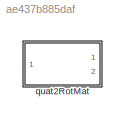
MODEL slx_ae437b885daf
KIND library
CONFIG AbsTol = auto
CONFIG EnableMultiTasking = off
CONFIG FixedStep = auto
CONFIG MaxStep = auto
CONFIG MinStep = auto
CONFIG RelTol = 1e-3
CONFIG SampleTimeConstraint = Unconstrained
CONFIG SolverName = VariableStepAuto
CONFIG StartTime = 0.0
CONFIG StopTime = 10.0
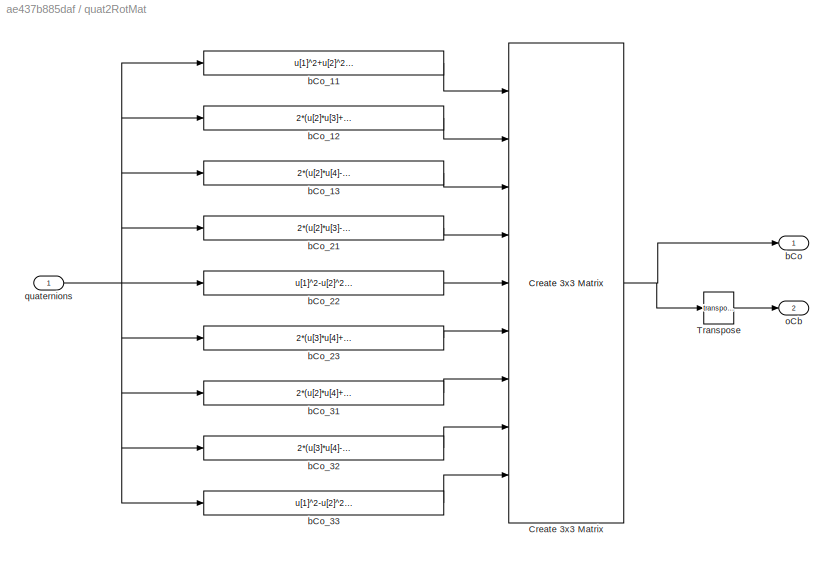
BLOCK [SubSystem] quat2RotMat
  Ports = [1, 2]
  RequestExecContextInheritance = off
BLOCK [Reference] quat2RotMat/Create 3x3 Matrix  REF=sharedutil/Create 3x3 Matrix
  Ports = [9, 1]
  SourceBlock = sharedutil/Create 3x3 Matrix
  SourceProductBaseCode = AE,PW,DR,MT,VE
  SourceType = Create 3x3 Matrix
BLOCK [Math] quat2RotMat/Transpose
  Operator = transpose
  Ports = [1, 1]
  SignedPower = on
BLOCK [Outport] quat2RotMat/bCo
  PortDimensions = [3,3]
  VectorParamsAs1DForOutWhenUnconnected = off
BLOCK [Fcn] quat2RotMat/bCo_11
  Expr = u[1]^2+u[2]^2-u[3]^2-u[4]^2
BLOCK [Fcn] quat2RotMat/bCo_12
  Expr = 2*(u[2]*u[3]+u[1]*u[4])
BLOCK [Fcn] quat2RotMat/bCo_13
  Expr = 2*(u[2]*u[4]-u[1]*u[3])
BLOCK [Fcn] quat2RotMat/bCo_21
  Expr = 2*(u[2]*u[3]-u[1]*u[4])
BLOCK [Fcn] quat2RotMat/bCo_22
  Expr = u[1]^2-u[2]^2+u[3]^2-u[4]^2
BLOCK [Fcn] quat2RotMat/bCo_23
  Expr = 2*(u[3]*u[4]+u[1]*u[2])
BLOCK [Fcn] quat2RotMat/bCo_31
  Expr = 2*(u[2]*u[4]+u[1]*u[3])
BLOCK [Fcn] quat2RotMat/bCo_32
  Expr = 2*(u[3]*u[4]-u[1]*u[2])
BLOCK [Fcn] quat2RotMat/bCo_33
  Expr = u[1]^2-u[2]^2-u[3]^2+u[4]^2
BLOCK [Outport] quat2RotMat/oCb
  Port = 2
  PortDimensions = [3,3]
  VectorParamsAs1DForOutWhenUnconnected = off
BLOCK [Inport] quat2RotMat/quaternions
NET quat2RotMat/Create 3x3 Matrix:1 -> quat2RotMat/Transpose:1, quat2RotMat/bCo:1
LINE quat2RotMat/Transpose:1 -> quat2RotMat/oCb:1
LINE quat2RotMat/bCo_11:1 -> quat2RotMat/Create 3x3 Matrix:1
LINE quat2RotMat/bCo_12:1 -> quat2RotMat/Create 3x3 Matrix:2
LINE quat2RotMat/bCo_13:1 -> quat2RotMat/Create 3x3 Matrix:3
LINE quat2RotMat/bCo_21:1 -> quat2RotMat/Create 3x3 Matrix:4
LINE quat2RotMat/bCo_22:1 -> quat2RotMat/Create 3x3 Matrix:5
LINE quat2RotMat/bCo_23:1 -> quat2RotMat/Create 3x3 Matrix:6
LINE quat2RotMat/bCo_31:1 -> quat2RotMat/Create 3x3 Matrix:7
LINE quat2RotMat/bCo_32:1 -> quat2RotMat/Create 3x3 Matrix:8
LINE quat2RotMat/bCo_33:1 -> quat2RotMat/Create 3x3 Matrix:9
NET quat2RotMat/quaternions:1 -> quat2RotMat/bCo_11:1, quat2RotMat/bCo_12:1, quat2RotMat/bCo_13:1, quat2RotMat/bCo_21:1, quat2RotMat/bCo_22:1, quat2RotMat/bCo_23:1, quat2RotMat/bCo_31:1, quat2RotMat/bCo_32:1, quat2RotMat/bCo_33:1
note: NET lines group one-source signal fan-out (src -> all destinations, sorted); 1:1 wires keep LINE
